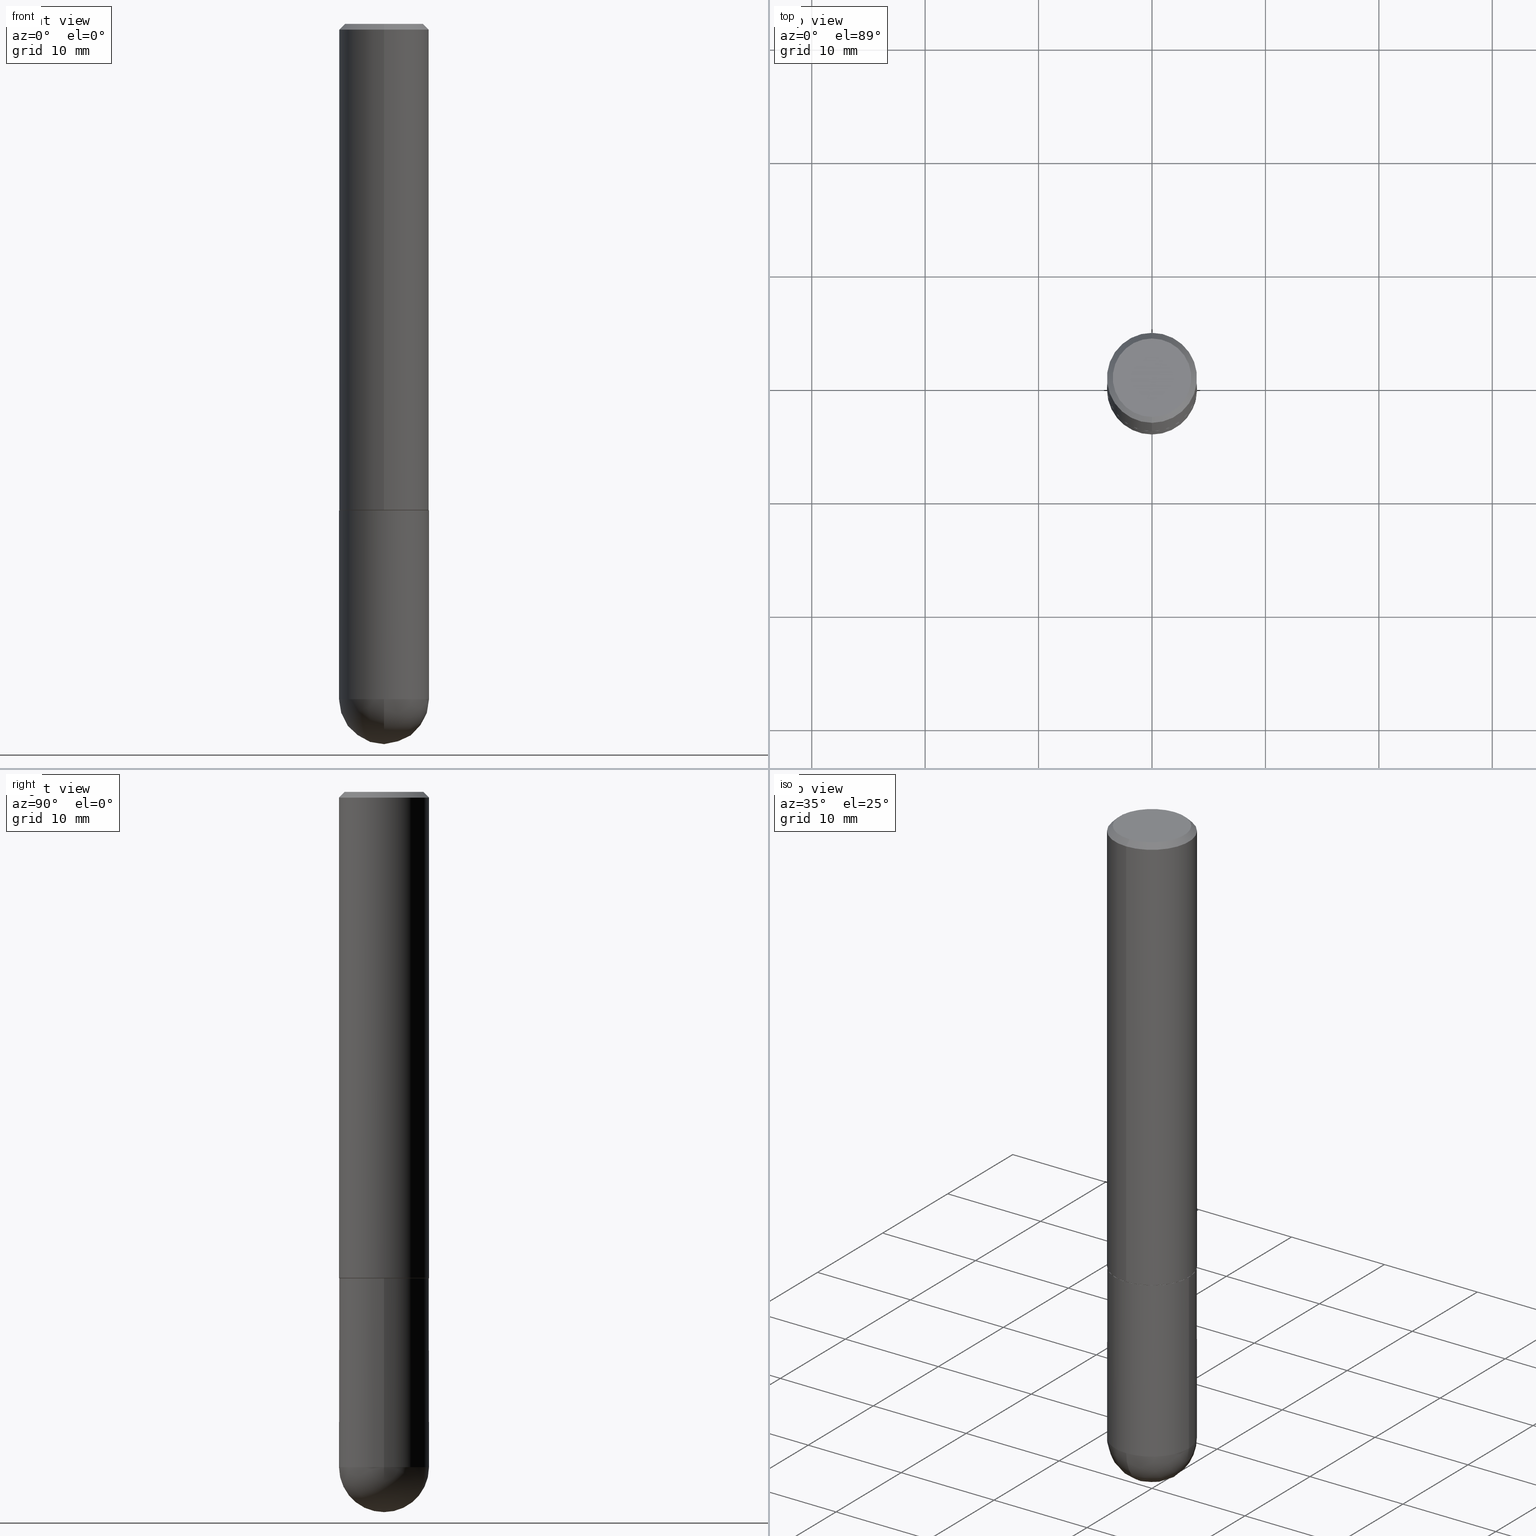
[diagram: canonical four-view strip — front | top / right | iso, engineering-drawing reading convention]
A machine part, canonical four-view strip (front | top / right | iso — engineering-drawing reading convention). The complete STEP part file that produces these views, byte-faithful:
ISO-10303-21;
HEADER;
FILE_DESCRIPTION (( 'STEP AP203' ),
    '1' );
FILE_NAME ('30050.STEP',
    '2024-02-21T16:34:51',
    ( '' ),
    ( '' ),
    'SwSTEP 2.0',
    'SolidWorks 2023',
    '' );
FILE_SCHEMA (( 'CONFIG_CONTROL_DESIGN' ));
ENDSEC;

DATA;
#1 = ORIENTED_EDGE ( 'NONE', *, *, #176, .F. ) ;
#2 = CLOSED_SHELL ( 'NONE', ( #108, #216, #400, #407, #177, #165, #371, #104 ) ) ;
#3 = ORIENTED_EDGE ( 'NONE', *, *, #37, .T. ) ;
#4 = PRODUCT_DEFINITION ( 'UNKNOWN', '', #352, #125 ) ;
#5 = VERTEX_POINT ( 'NONE', #86 ) ;
#6 = VERTEX_POINT ( 'NONE', #272 ) ;
#7 = CLOSED_SHELL ( 'NONE', ( #152, #32, #346, #262, #134 ) ) ;
#8 = CC_DESIGN_SECURITY_CLASSIFICATION ( #347, ( #352 ) ) ;
#9 = AXIS2_PLACEMENT_3D ( 'NONE', #308, #88, #243 ) ;
#10 = DIRECTION ( 'NONE',  ( -2.445468806185136597E-29, 3.491481338843145583E-15, 1.000000000000000000 ) ) ;
#11 = VERTEX_POINT ( 'NONE', #238 ) ;
#12 = DIRECTION ( 'NONE',  ( 6.982962677686266711E-15, 1.000000000000000000, -3.496765431890256131E-15 ) ) ;
#13 = SPHERICAL_SURFACE ( 'NONE', #94, 0.1562500000000002498 ) ;
#14 = APPROVAL_PERSON_ORGANIZATION ( #278, #45, #122 ) ;
#15 = CIRCLE ( 'NONE', #250, 0.1562500000000000000 ) ;
#16 = CARTESIAN_POINT ( 'NONE',  ( -0.1562500000000000000, -5.928166919315270321E-15, -2.343750000000000000 ) ) ;
#17 = COORDINATED_UNIVERSAL_TIME_OFFSET ( 5, 0, .BEHIND. ) ;
#18 = DIRECTION ( 'NONE',  ( -2.446097073552019449E-29, 3.490581624215010938E-15, 1.000000000000000000 ) ) ;
#19 = CALENDAR_DATE ( 2024, 21, 2 ) ;
#20 = DIRECTION ( 'NONE',  ( -2.446097073552019449E-29, 3.490581624215010938E-15, 1.000000000000000000 ) ) ;
#21 = EDGE_CURVE ( 'NONE', #350, #105, #392, .T. ) ;
#22 = CARTESIAN_POINT ( 'NONE',  ( 5.400447736582527652E-29, -8.657341756053672891E-15, -2.343750000000000000 ) ) ;
#23 = APPROVAL_DATE_TIME ( #311, #123 ) ;
#24 = APPLICATION_PROTOCOL_DEFINITION ( 'international standard', 'config_control_design', 1994, #254 ) ;
#25 = AXIS2_PLACEMENT_3D ( 'NONE', #22, #412, #71 ) ;
#26 = DIRECTION ( 'NONE',  ( -4.937700262164884886E-15, -0.7071067811865933139, 0.7071067811865017205 ) ) ;
#27 = PERSON_AND_ORGANIZATION ( #355, #320 ) ;
#28 = DIRECTION ( 'NONE',  ( -1.000000000000000000, 6.982962677686265922E-15, -4.883557194083112340E-29 ) ) ;
#29 = PERSON_AND_ORGANIZATION ( #355, #320 ) ;
#30 = CARTESIAN_POINT ( 'NONE',  ( 1.091087918388479765E-15, 0.1562499999999999722, -0.02000000000000057981 ) ) ;
#31 = ORIENTED_EDGE ( 'NONE', *, *, #283, .F. ) ;
#32 = ADVANCED_FACE ( 'NONE', ( #143 ), #13, .T. ) ;
#33 = APPLICATION_CONTEXT ( 'configuration controlled 3d designs of mechanical parts and assemblies' ) ;
#34 = CIRCLE ( 'NONE', #292, 0.1552499999999999991 ) ;
#35 = DIRECTION ( 'NONE',  ( -2.445468806185136597E-29, 3.491481338843145583E-15, 1.000000000000000000 ) ) ;
#36 =( GEOMETRIC_REPRESENTATION_CONTEXT ( 3 ) GLOBAL_UNCERTAINTY_ASSIGNED_CONTEXT ( ( #186 ) ) GLOBAL_UNIT_ASSIGNED_CONTEXT ( ( #270, #236, #363 ) ) REPRESENTATION_CONTEXT ( 'NONE', 'WORKASPACE' ) );
#37 = EDGE_CURVE ( 'NONE', #5, #105, #333, .T. ) ;
#38 = EDGE_CURVE ( 'NONE', #228, #160, #39, .T. ) ;
#39 = CIRCLE ( 'NONE', #56, 0.1562500000000002498 ) ;
#40 = ORIENTED_EDGE ( 'NONE', *, *, #225, .T. ) ;
#41 = ORIENTED_EDGE ( 'NONE', *, *, #195, .F. ) ;
#42 = EDGE_CURVE ( 'NONE', #157, #159, #295, .T. ) ;
#43 = ORIENTED_EDGE ( 'NONE', *, *, #21, .T. ) ;
#44 = DIRECTION ( 'NONE',  ( -1.000000000000000000, 6.982962677686265922E-15, -4.883557194083112340E-29 ) ) ;
#45 = APPROVAL ( #91, 'UNSPECIFIED' ) ;
#46 = AXIS2_PLACEMENT_3D ( 'NONE', #391, #330, #171 ) ;
#47 = ORIENTED_EDGE ( 'NONE', *, *, #403, .T. ) ;
#48 = DIRECTION ( 'NONE',  ( -2.445468806185136877E-29, 3.491481338843145188E-15, 1.000000000000000000 ) ) ;
#49 = VERTEX_POINT ( 'NONE', #16 ) ;
#50 = CARTESIAN_POINT ( 'NONE',  ( -1.084104955710751547E-15, -0.1552500000000059110, -1.687999999999999501 ) ) ;
#51 = CYLINDRICAL_SURFACE ( 'NONE', #132, 0.1562500000000000000 ) ;
#52 = EDGE_CURVE ( 'NONE', #5, #159, #142, .T. ) ;
#53 = EDGE_LOOP ( 'NONE', ( #3, #223, #85, #349 ) ) ;
#54 = DIRECTION ( 'NONE',  ( -2.445468806185136597E-29, 3.491481338843145583E-15, 1.000000000000000000 ) ) ;
#55 = DATE_TIME_ROLE ( 'creation_date' ) ;
#56 = AXIS2_PLACEMENT_3D ( 'NONE', #166, #82, #327 ) ;
#57 = DIRECTION ( 'NONE',  ( 1.000000000000000000, -6.982962677686262766E-15, 0.000000000000000000 ) ) ;
#58 = AXIS2_PLACEMENT_3D ( 'NONE', #342, #28, #150 ) ;
#59 = CYLINDRICAL_SURFACE ( 'NONE', #219, 0.1562500000000000000 ) ;
#60 = PLANE ( 'NONE',  #261 ) ;
#61 = CARTESIAN_POINT ( 'NONE',  ( 4.892194147104047096E-31, -6.981163248430033315E-17, -0.02000000000000003511 ) ) ;
#62 = DATE_AND_TIME ( #337, #302 ) ;
#63 = ORIENTED_EDGE ( 'NONE', *, *, #187, .F. ) ;
#64 = DIRECTION ( 'NONE',  ( -1.000000000000000000, 6.982962677686265922E-15, -4.876176775795935793E-29 ) ) ;
#65 = PERSON_AND_ORGANIZATION_ROLE ( 'creator' ) ;
#66 = CARTESIAN_POINT ( 'NONE',  ( 0.000000000000000000, 0.000000000000000000, 0.000000000000000000 ) ) ;
#67 = VECTOR ( 'NONE', #111, 39.37007874015748143 ) ;
#68 = FACE_OUTER_BOUND ( 'NONE', #331, .T. ) ;
#69 = ORIENTED_EDGE ( 'NONE', *, *, #362, .T. ) ;
#70 = DIRECTION ( 'NONE',  ( -6.982962677686265922E-15, -1.000000000000000000, 3.519288880726909138E-15 ) ) ;
#71 = DIRECTION ( 'NONE',  ( -7.105427357601000281E-15, -1.000000000000000000, 0.000000000000000000 ) ) ;
#72 = AXIS2_PLACEMENT_3D ( 'NONE', #360, #209, #135 ) ;
#73 = CC_DESIGN_APPROVAL ( #340, ( #4 ) ) ;
#74 = EDGE_LOOP ( 'NONE', ( #79, #80, #69, #353 ) ) ;
#75 = CIRCLE ( 'NONE', #301, 0.1552499999999999991 ) ;
#76 = AXIS2_PLACEMENT_3D ( 'NONE', #97, #402, #92 ) ;
#77 = ORIENTED_EDGE ( 'NONE', *, *, #225, .F. ) ;
#78 = CARTESIAN_POINT ( 'NONE',  ( 1.091087918388535577E-15, 0.1562499999999916733, -2.343750000000000444 ) ) ;
#79 = ORIENTED_EDGE ( 'NONE', *, *, #140, .F. ) ;
#80 = ORIENTED_EDGE ( 'NONE', *, *, #42, .T. ) ;
#81 = DIRECTION ( 'NONE',  ( -6.982962677686265922E-15, -1.000000000000000000, 3.496765431890251792E-15 ) ) ;
#82 = DIRECTION ( 'NONE',  ( 1.000000000000000000, -6.982962677686265922E-15, 4.883557194083112340E-29 ) ) ;
#83 = DATE_AND_TIME ( #307, #163 ) ;
#84 = CARTESIAN_POINT ( 'NONE',  ( 1.110223024625178431E-15, 0.1562499999999943379, -1.687000000000000499 ) ) ;
#85 = ORIENTED_EDGE ( 'NONE', *, *, #362, .F. ) ;
#86 = CARTESIAN_POINT ( 'NONE',  ( -1.091087918388439336E-15, -0.1562500000000060785, -1.686999999999999611 ) ) ;
#87 = CALENDAR_DATE ( 2024, 21, 2 ) ;
#88 = DIRECTION ( 'NONE',  ( -2.446097073552019730E-29, 3.490581624215010938E-15, 1.000000000000000000 ) ) ;
#89 = DIMENSIONAL_EXPONENTS ( 1.000000000000000000, 0.000000000000000000, 0.000000000000000000, 0.000000000000000000, 0.000000000000000000, 0.000000000000000000, 0.000000000000000000 ) ;
#90 = DIRECTION ( 'NONE',  ( 2.438088387897960049E-29, -3.491481338843145188E-15, -1.000000000000000000 ) ) ;
#91 = APPROVAL_STATUS ( 'not_yet_approved' ) ;
#92 = DIRECTION ( 'NONE',  ( 1.000000000000000000, -6.982962677686269077E-15, 0.000000000000000000 ) ) ;
#93 = COORDINATED_UNIVERSAL_TIME_OFFSET ( 5, 0, .BEHIND. ) ;
#94 = AXIS2_PLACEMENT_3D ( 'NONE', #356, #44, #232 ) ;
#95 = DIRECTION ( 'NONE',  ( -2.446097073552019730E-29, 3.490581624215010938E-15, 1.000000000000000000 ) ) ;
#96 = CYLINDRICAL_SURFACE ( 'NONE', #382, 0.1562500000000001388 ) ;
#97 = CARTESIAN_POINT ( 'NONE',  ( 4.127951344840510809E-29, -5.893620499967230340E-15, -1.688000000000000167 ) ) ;
#98 = EDGE_CURVE ( 'NONE', #49, #196, #361, .T. ) ;
#99 = AXIS2_PLACEMENT_3D ( 'NONE', #263, #201, #205 ) ;
#100 = EDGE_LOOP ( 'NONE', ( #208, #288, #194, #203, #237 ) ) ;
#101 = ORIENTED_EDGE ( 'NONE', *, *, #21, .F. ) ;
#102 = ORIENTED_EDGE ( 'NONE', *, *, #116, .T. ) ;
#103 = CARTESIAN_POINT ( 'NONE',  ( 5.731567514496413899E-29, -8.183159387913622595E-15, -2.343750000000000000 ) ) ;
#104 = ADVANCED_FACE ( 'NONE', ( #328 ), #299, .F. ) ;
#105 = VERTEX_POINT ( 'NONE', #84 ) ;
#106 = AXIS2_PLACEMENT_3D ( 'NONE', #395, #231, #12 ) ;
#107 = CARTESIAN_POINT ( 'NONE',  ( -1.003347832174086278E-15, -0.1362500000000000377, 4.925432101416136733E-16 ) ) ;
#108 = ADVANCED_FACE ( 'NONE', ( #393 ), #206, .T. ) ;
#109 = DIRECTION ( 'NONE',  ( -2.446097073552019730E-29, 3.490581624215010938E-15, 1.000000000000000000 ) ) ;
#110 = EDGE_LOOP ( 'NONE', ( #156, #260 ) ) ;
#111 = DIRECTION ( 'NONE',  ( -4.851104656540958753E-15, -0.7071067811865492381, -0.7071067811865457964 ) ) ;
#112 = APPROVAL_ROLE ( '' ) ;
#113 = ORIENTED_EDGE ( 'NONE', *, *, #98, .F. ) ;
#114 = DIRECTION ( 'NONE',  ( 6.982962677686265922E-15, 1.000000000000000000, -3.490581624215010938E-15 ) ) ;
#115 = PERSON_AND_ORGANIZATION_ROLE ( 'design_owner' ) ;
#116 = EDGE_CURVE ( 'NONE', #350, #367, #34, .T. ) ;
#117 = ORIENTED_EDGE ( 'NONE', *, *, #358, .F. ) ;
#118 = APPROVAL_PERSON_ORGANIZATION ( #394, #340, #145 ) ;
#119 = CC_DESIGN_DATE_AND_TIME_ASSIGNMENT ( #149, #405, ( #347 ) ) ;
#120 = CARTESIAN_POINT ( 'NONE',  ( 5.731567514496413899E-29, -8.183159387913622595E-15, -2.343750000000000000 ) ) ;
#121 = APPROVAL_DATE_TIME ( #62, #340 ) ;
#122 = APPROVAL_ROLE ( '' ) ;
#123 = APPROVAL ( #242, 'UNSPECIFIED' ) ;
#124 = LINE ( 'NONE', #246, #133 ) ;
#125 = DESIGN_CONTEXT ( 'detailed design', #33, 'design' ) ;
#126 = DIRECTION ( 'NONE',  ( -2.446097073552019730E-29, 3.490581624215010938E-15, 1.000000000000000000 ) ) ;
#127 = DIRECTION ( 'NONE',  ( -2.445468806185136877E-29, 3.491481338843145188E-15, 1.000000000000000000 ) ) ;
#128 = ORIENTED_EDGE ( 'NONE', *, *, #37, .F. ) ;
#129 = AXIS2_PLACEMENT_3D ( 'NONE', #218, #316, #369 ) ;
#130 = EDGE_LOOP ( 'NONE', ( #184, #1, #385, #240 ) ) ;
#131 = EDGE_LOOP ( 'NONE', ( #390, #233 ) ) ;
#132 = AXIS2_PLACEMENT_3D ( 'NONE', #138, #54, #296 ) ;
#133 = VECTOR ( 'NONE', #377, 39.37007874015748143 ) ;
#134 = ADVANCED_FACE ( 'NONE', ( #234 ), #51, .T. ) ;
#135 = DIRECTION ( 'NONE',  ( -6.982962677686265922E-15, -1.000000000000000000, 3.496765431890251792E-15 ) ) ;
#136 = CARTESIAN_POINT ( 'NONE',  ( -4.146492609711773360E-46, 5.917046819154153531E-32, 1.695146384231832547E-17 ) ) ;
#137 = CARTESIAN_POINT ( 'NONE',  ( 5.731567514496413899E-29, -8.183159387913622595E-15, -2.343750000000000000 ) ) ;
#138 = CARTESIAN_POINT ( 'NONE',  ( 0.000000000000000000, 0.000000000000000000, 0.000000000000000000 ) ) ;
#139 = AXIS2_PLACEMENT_3D ( 'NONE', #406, #35, #379 ) ;
#140 = EDGE_CURVE ( 'NONE', #157, #326, #365, .T. ) ;
#141 = APPROVAL_PERSON_ORGANIZATION ( #368, #123, #112 ) ;
#142 = LINE ( 'NONE', #168, #286 ) ;
#143 = FACE_OUTER_BOUND ( 'NONE', #257, .T. ) ;
#144 = DIRECTION ( 'NONE',  ( -2.446097073552019730E-29, 3.490581624215010938E-15, 1.000000000000000000 ) ) ;
#145 = APPROVAL_ROLE ( '' ) ;
#146 = CIRCLE ( 'NONE', #341, 0.1362500000000000377 ) ;
#147 = FACE_OUTER_BOUND ( 'NONE', #74, .T. ) ;
#148 = CARTESIAN_POINT ( 'NONE',  ( 0.1562500000000000000, -1.091087918388479174E-15, 7.619026212181150377E-30 ) ) ;
#149 = DATE_AND_TIME ( #19, #158 ) ;
#150 = DIRECTION ( 'NONE',  ( 6.982962677686265922E-15, 1.000000000000000000, -3.496765431890251398E-15 ) ) ;
#151 = DIRECTION ( 'NONE',  ( -6.982962677686265922E-15, -1.000000000000000000, 3.490581624215010938E-15 ) ) ;
#152 = ADVANCED_FACE ( 'NONE', ( #389 ), #59, .T. ) ;
#153 = AXIS2_PLACEMENT_3D ( 'NONE', #303, #305, #114 ) ;
#154 = AXIS2_PLACEMENT_3D ( 'NONE', #66, #180, #312 ) ;
#155 = DIRECTION ( 'NONE',  ( -6.982962677686265922E-15, -1.000000000000000000, 3.490581624215010544E-15 ) ) ;
#156 = ORIENTED_EDGE ( 'NONE', *, *, #255, .T. ) ;
#157 = VERTEX_POINT ( 'NONE', #107 ) ;
#158 = LOCAL_TIME ( 11, 34, 51.00000000000000000, #17 ) ;
#159 = VERTEX_POINT ( 'NONE', #227 ) ;
#160 = VERTEX_POINT ( 'NONE', #78 ) ;
#161 = VECTOR ( 'NONE', #48, 39.37007874015748143 ) ;
#162 = ORIENTED_EDGE ( 'NONE', *, *, #358, .T. ) ;
#163 = LOCAL_TIME ( 11, 34, 51.00000000000000000, #174 ) ;
#164 = CARTESIAN_POINT ( 'NONE',  ( 4.129011860155809366E-29, -5.892101781674938770E-15, -1.688000000000000167 ) ) ;
#165 = ADVANCED_FACE ( 'NONE', ( #198 ), #273, .T. ) ;
#166 = CARTESIAN_POINT ( 'NONE',  ( 5.400447736582527652E-29, -8.657341756053672891E-15, -2.343750000000000000 ) ) ;
#167 = FACE_OUTER_BOUND ( 'NONE', #315, .T. ) ;
#168 = CARTESIAN_POINT ( 'NONE',  ( -1.091087918388479962E-15, -0.1562500000000001388, 5.454033787835959398E-16 ) ) ;
#169 = COORDINATED_UNIVERSAL_TIME_OFFSET ( 5, 0, .BEHIND. ) ;
#170 = AXIS2_PLACEMENT_3D ( 'NONE', #381, #90, #64 ) ;
#171 = DIRECTION ( 'NONE',  ( 6.982962677686266711E-15, 1.000000000000000000, -3.496765431890256131E-15 ) ) ;
#172 = CARTESIAN_POINT ( 'NONE',  ( 0.000000000000000000, 0.000000000000000000, 0.000000000000000000 ) ) ;
#173 = FACE_OUTER_BOUND ( 'NONE', #110, .T. ) ;
#174 = COORDINATED_UNIVERSAL_TIME_OFFSET ( 5, 0, .BEHIND. ) ;
#175 =( LENGTH_UNIT ( ) NAMED_UNIT ( * ) SI_UNIT ( $, .METRE. ) );
#176 = EDGE_CURVE ( 'NONE', #326, #157, #146, .T. ) ;
#177 = ADVANCED_FACE ( 'NONE', ( #68 ), #96, .T. ) ;
#178 = CARTESIAN_POINT ( 'NONE',  ( 1.091087918388479765E-15, 0.1562499999999999722, -0.02000000000000057981 ) ) ;
#179 = APPROVAL_STATUS ( 'not_yet_approved' ) ;
#180 = DIRECTION ( 'NONE',  ( 0.000000000000000000, 0.000000000000000000, 1.000000000000000000 ) ) ;
#181 = CARTESIAN_POINT ( 'NONE',  ( -1.084104955710751547E-15, -0.1552500000000059110, -1.687999999999999501 ) ) ;
#182 = CALENDAR_DATE ( 2024, 21, 2 ) ;
#183 = CARTESIAN_POINT ( 'NONE',  ( 0.000000000000000000, 0.000000000000000000, 0.000000000000000000 ) ) ;
#184 = ORIENTED_EDGE ( 'NONE', *, *, #42, .F. ) ;
#185 = DIRECTION ( 'NONE',  ( -2.446097073552019730E-29, 3.490581624215010938E-15, 1.000000000000000000 ) ) ;
#186 = UNCERTAINTY_MEASURE_WITH_UNIT (LENGTH_MEASURE( 1.000000000000000082E-05 ), #270, 'distance_accuracy_value', 'NONE');
#187 = EDGE_CURVE ( 'NONE', #6, #160, #197, .T. ) ;
#188 = CIRCLE ( 'NONE', #281, 0.1562500000000000000 ) ;
#189 = CIRCLE ( 'NONE', #401, 0.1562500000000000278 ) ;
#190 = ORIENTED_EDGE ( 'NONE', *, *, #38, .F. ) ;
#191 = CC_DESIGN_DATE_AND_TIME_ASSIGNMENT ( #83, #55, ( #4 ) ) ;
#192 = EDGE_LOOP ( 'NONE', ( #40, #43, #128, #383 ) ) ;
#193 = CONICAL_SURFACE ( 'NONE', #106, 0.1562500000000000278, 0.7853981633974472798 ) ;
#194 = ORIENTED_EDGE ( 'NONE', *, *, #255, .F. ) ;
#195 = EDGE_CURVE ( 'NONE', #228, #11, #376, .T. ) ;
#196 = VERTEX_POINT ( 'NONE', #409 ) ;
#197 = CIRCLE ( 'NONE', #139, 0.1562500000000000000 ) ;
#198 = FACE_OUTER_BOUND ( 'NONE', #323, .T. ) ;
#199 = DIRECTION ( 'NONE',  ( 5.024295867788404755E-15, 0.7071067811865981989, 0.7071067811864968355 ) ) ;
#200 = CARTESIAN_POINT ( 'NONE',  ( 0.1562500000000000000, -6.984708418355709513E-15, -1.688000000000000167 ) ) ;
#201 = DIRECTION ( 'NONE',  ( -2.446097073552019730E-29, 3.490581624215010938E-15, 1.000000000000000000 ) ) ;
#202 = SHAPE_DEFINITION_REPRESENTATION ( #289, #359 ) ;
#203 = ORIENTED_EDGE ( 'NONE', *, *, #211, .F. ) ;
#204 = DIRECTION ( 'NONE',  ( -2.445468806185136597E-29, 3.491481338843145583E-15, 1.000000000000000000 ) ) ;
#205 = DIRECTION ( 'NONE',  ( -6.982962677686265922E-15, -1.000000000000000000, 3.519288880726909138E-15 ) ) ;
#206 = CONICAL_SURFACE ( 'NONE', #99, 0.1552499999999999991, 0.7853981633975165577 ) ;
#207 = CIRCLE ( 'NONE', #294, 0.1562500000000002220 ) ;
#208 = ORIENTED_EDGE ( 'NONE', *, *, #290, .T. ) ;
#209 = DIRECTION ( 'NONE',  ( -2.446097073552019730E-29, 3.490581624215010938E-15, 1.000000000000000000 ) ) ;
#210 = PERSON_AND_ORGANIZATION ( #355, #320 ) ;
#211 = EDGE_CURVE ( 'NONE', #6, #364, #314, .T. ) ;
#212 = LENGTH_MEASURE_WITH_UNIT ( LENGTH_MEASURE( 0.02539999999999999897 ), #175 );
#213 = DIRECTION ( 'NONE',  ( -2.445468806185136597E-29, 3.491481338843145583E-15, 1.000000000000000000 ) ) ;
#214 = MECHANICAL_CONTEXT ( 'NONE', #254, 'mechanical' ) ;
#215 = SPHERICAL_SURFACE ( 'NONE', #58, 0.1562500000000002498 ) ;
#216 = ADVANCED_FACE ( 'NONE', ( #344 ), #339, .T. ) ;
#217 = CARTESIAN_POINT ( 'NONE',  ( 5.789233224183170584E-29, -9.193318162129576161E-15, -2.500000000000000000 ) ) ;
#218 = CARTESIAN_POINT ( 'NONE',  ( 4.127951344840510809E-29, -5.893620499967230340E-15, -1.688000000000000167 ) ) ;
#219 = AXIS2_PLACEMENT_3D ( 'NONE', #172, #10, #267 ) ;
#220 = CONICAL_SURFACE ( 'NONE', #46, 0.1562500000000000278, 0.7853981633974472798 ) ;
#221 = ORIENTED_EDGE ( 'NONE', *, *, #195, .T. ) ;
#222 = EDGE_CURVE ( 'NONE', #326, #287, #241, .T. ) ;
#223 = ORIENTED_EDGE ( 'NONE', *, *, #354, .T. ) ;
#224 = ORIENTED_EDGE ( 'NONE', *, *, #403, .F. ) ;
#225 = EDGE_CURVE ( 'NONE', #367, #350, #75, .T. ) ;
#226 = CC_DESIGN_APPROVAL ( #123, ( #352 ) ) ;
#227 = CARTESIAN_POINT ( 'NONE',  ( -1.071952812151801412E-15, -0.1562500000000001110, -0.01999999999999948694 ) ) ;
#228 = VERTEX_POINT ( 'NONE', #217 ) ;
#229 = VECTOR ( 'NONE', #199, 39.37007874015748143 ) ;
#230 = DIRECTION ( 'NONE',  ( -6.982962677686265922E-15, -1.000000000000000000, 3.519288880726909138E-15 ) ) ;
#231 = DIRECTION ( 'NONE',  ( 2.446097073552019730E-29, -3.490581624215010938E-15, -1.000000000000000000 ) ) ;
#232 = DIRECTION ( 'NONE',  ( 6.982962677686265922E-15, 1.000000000000000000, -3.496765431890251398E-15 ) ) ;
#233 = ORIENTED_EDGE ( 'NONE', *, *, #140, .T. ) ;
#234 = FACE_OUTER_BOUND ( 'NONE', #396, .T. ) ;
#235 = MANIFOLD_SOLID_BREP ( 'Body-Move/Copy2[1]', #7 ) ;
#236 =( NAMED_UNIT ( * ) PLANE_ANGLE_UNIT ( ) SI_UNIT ( $, .RADIAN. ) );
#237 = ORIENTED_EDGE ( 'NONE', *, *, #187, .T. ) ;
#238 = CARTESIAN_POINT ( 'NONE',  ( -1.110223024625101517E-15, -0.1562500000000085487, -2.343749999999999556 ) ) ;
#239 = APPLICATION_PROTOCOL_DEFINITION ( 'international standard', 'config_control_design', 1994, #33 ) ;
#240 = ORIENTED_EDGE ( 'NONE', *, *, #283, .T. ) ;
#241 = LINE ( 'NONE', #30, #248 ) ;
#242 = APPROVAL_STATUS ( 'not_yet_approved' ) ;
#243 = DIRECTION ( 'NONE',  ( -6.982962677686266711E-15, -1.000000000000000000, 3.496765431890256131E-15 ) ) ;
#244 = PLANE ( 'NONE',  #170 ) ;
#245 = PERSON_AND_ORGANIZATION ( #355, #320 ) ;
#246 = CARTESIAN_POINT ( 'NONE',  ( 1.110223024625157329E-15, 0.1562500000000001388, -5.454033787835959398E-16 ) ) ;
#247 = PERSON_AND_ORGANIZATION_ROLE ( 'classification_officer' ) ;
#248 = VECTOR ( 'NONE', #345, 39.37007874015748143 ) ;
#249 = CC_DESIGN_APPROVAL ( #45, ( #347 ) ) ;
#250 = AXIS2_PLACEMENT_3D ( 'NONE', #137, #204, #57 ) ;
#251 = DIRECTION ( 'NONE',  ( -6.982962677686265922E-15, -1.000000000000000000, 3.519288880726909138E-15 ) ) ;
#252 = DIRECTION ( 'NONE',  ( -2.446097073552019730E-29, 3.490581624215010938E-15, 1.000000000000000000 ) ) ;
#253 = ORIENTED_EDGE ( 'NONE', *, *, #52, .T. ) ;
#254 = APPLICATION_CONTEXT ( 'configuration controlled 3d designs of mechanical parts and assemblies' ) ;
#255 = EDGE_CURVE ( 'NONE', #364, #196, #309, .T. ) ;
#256 = VECTOR ( 'NONE', #127, 39.37007874015748143 ) ;
#257 = EDGE_LOOP ( 'NONE', ( #190, #221, #117, #259 ) ) ;
#258 = CC_DESIGN_PERSON_AND_ORGANIZATION_ASSIGNMENT ( #27, #247, ( #347 ) ) ;
#259 = ORIENTED_EDGE ( 'NONE', *, *, #290, .F. ) ;
#260 = ORIENTED_EDGE ( 'NONE', *, *, #271, .T. ) ;
#261 = AXIS2_PLACEMENT_3D ( 'NONE', #338, #20, #298 ) ;
#262 = ADVANCED_FACE ( 'NONE', ( #173 ), #244, .F. ) ;
#263 = CARTESIAN_POINT ( 'NONE',  ( 4.129011860155809366E-29, -5.892101781674938770E-15, -1.688000000000000167 ) ) ;
#264 = CARTESIAN_POINT ( 'NONE',  ( -0.1562500000000000000, 1.110223024625156540E-15, -7.685836078523291160E-30 ) ) ;
#265 = CC_DESIGN_PERSON_AND_ORGANIZATION_ASSIGNMENT ( #398, #65, ( #4 ) ) ;
#266 = CARTESIAN_POINT ( 'NONE',  ( 4.126565763082257571E-29, -5.888611200050725168E-15, -1.687000000000000055 ) ) ;
#267 = DIRECTION ( 'NONE',  ( 1.000000000000000000, -6.982962677686266711E-15, 4.876176775795936353E-29 ) ) ;
#268 = DIRECTION ( 'NONE',  ( -6.982962677686265922E-15, -1.000000000000000000, 3.490581624215010544E-15 ) ) ;
#269 = DATE_AND_TIME ( #87, #293 ) ;
#270 =( CONVERSION_BASED_UNIT ( 'INCH', #212 ) LENGTH_UNIT ( ) NAMED_UNIT ( #89 ) );
#271 = EDGE_CURVE ( 'NONE', #196, #364, #408, .T. ) ;
#272 = CARTESIAN_POINT ( 'NONE',  ( 0.1562500000000000000, -8.129477862328905246E-15, -2.343750000000000000 ) ) ;
#273 = CONICAL_SURFACE ( 'NONE', #324, 0.1552499999999999991, 0.7853981633975165577 ) ;
#274 = DIRECTION ( 'NONE',  ( -6.982962677686266711E-15, -1.000000000000000000, 3.496765431890256131E-15 ) ) ;
#275 = COORDINATED_UNIVERSAL_TIME_OFFSET ( 5, 0, .BEHIND. ) ;
#276 = PRODUCT_RELATED_PRODUCT_CATEGORY ( 'detail', '', ( #387 ) ) ;
#277 = CARTESIAN_POINT ( 'NONE',  ( 1.021258291611616861E-15, 0.1362500000000000377, -4.586402824569769484E-16 ) ) ;
#278 = PERSON_AND_ORGANIZATION ( #355, #320 ) ;
#279 = DIRECTION ( 'NONE',  ( -2.446097073552019730E-29, 3.490581624215010938E-15, 1.000000000000000000 ) ) ;
#280 = CARTESIAN_POINT ( 'NONE',  ( 4.129011860155809366E-29, -5.892101781674938770E-15, -1.688000000000000167 ) ) ;
#281 = AXIS2_PLACEMENT_3D ( 'NONE', #120, #213, #310 ) ;
#282 = DIRECTION ( 'NONE',  ( -6.982962677686265922E-15, -1.000000000000000000, 3.490581624215010938E-15 ) ) ;
#283 = EDGE_CURVE ( 'NONE', #287, #159, #189, .T. ) ;
#284 = ORIENTED_EDGE ( 'NONE', *, *, #378, .F. ) ;
#285 = ORIENTED_EDGE ( 'NONE', *, *, #354, .F. ) ;
#286 = VECTOR ( 'NONE', #18, 39.37007874015748143 ) ;
#287 = VERTEX_POINT ( 'NONE', #178 ) ;
#288 = ORIENTED_EDGE ( 'NONE', *, *, #98, .T. ) ;
#289 = PRODUCT_DEFINITION_SHAPE ( 'NONE', 'NONE',  #4 ) ;
#290 = EDGE_CURVE ( 'NONE', #160, #49, #188, .T. ) ;
#291 = ORIENTED_EDGE ( 'NONE', *, *, #38, .T. ) ;
#292 = AXIS2_PLACEMENT_3D ( 'NONE', #164, #109, #230 ) ;
#293 = LOCAL_TIME ( 11, 34, 51.00000000000000000, #93 ) ;
#294 = AXIS2_PLACEMENT_3D ( 'NONE', #266, #300, #81 ) ;
#295 = LINE ( 'NONE', #388, #67 ) ;
#296 = DIRECTION ( 'NONE',  ( 1.000000000000000000, -6.982962677686266711E-15, 4.876176775795936353E-29 ) ) ;
#297 = ORIENTED_EDGE ( 'NONE', *, *, #116, .F. ) ;
#298 = DIRECTION ( 'NONE',  ( -6.982962677686265922E-15, -1.000000000000000000, 3.490581624215010938E-15 ) ) ;
#299 = PLANE ( 'NONE',  #153 ) ;
#300 = DIRECTION ( 'NONE',  ( -2.446097073552019730E-29, 3.490581624215010938E-15, 1.000000000000000000 ) ) ;
#301 = AXIS2_PLACEMENT_3D ( 'NONE', #280, #126, #251 ) ;
#302 = LOCAL_TIME ( 11, 34, 51.00000000000000000, #275 ) ;
#303 = CARTESIAN_POINT ( 'NONE',  ( 9.514286648347539576E-16, 0.1362500000000000377, -4.671160143781362282E-16 ) ) ;
#304 = APPROVAL_DATE_TIME ( #269, #45 ) ;
#305 = DIRECTION ( 'NONE',  ( 2.446097073552019449E-29, -3.490581624215010938E-15, -1.000000000000000000 ) ) ;
#306 = CARTESIAN_POINT ( 'NONE',  ( -4.146492609711773360E-46, 5.917046819154153531E-32, 1.695146384231832547E-17 ) ) ;
#307 = CALENDAR_DATE ( 2024, 21, 2 ) ;
#308 = CARTESIAN_POINT ( 'NONE',  ( 4.892194147104047096E-31, -6.981163248430033315E-17, -0.02000000000000003511 ) ) ;
#309 = CIRCLE ( 'NONE', #129, 0.1562500000000000000 ) ;
#310 = DIRECTION ( 'NONE',  ( 1.000000000000000000, -6.982962677686262766E-15, 0.000000000000000000 ) ) ;
#311 = DATE_AND_TIME ( #182, #410 ) ;
#312 = DIRECTION ( 'NONE',  ( 1.000000000000000000, 0.000000000000000000, 0.000000000000000000 ) ) ;
#313 = LINE ( 'NONE', #181, #317 ) ;
#314 = LINE ( 'NONE', #148, #256 ) ;
#315 = EDGE_LOOP ( 'NONE', ( #77, #297 ) ) ;
#316 = DIRECTION ( 'NONE',  ( -2.445468806185136597E-29, 3.491481338843145583E-15, 1.000000000000000000 ) ) ;
#317 = VECTOR ( 'NONE', #26, 39.37007874015748143 ) ;
#318 = ORIENTED_EDGE ( 'NONE', *, *, #211, .T. ) ;
#319 = ORIENTED_EDGE ( 'NONE', *, *, #271, .F. ) ;
#320 = ORGANIZATION ( 'UNSPECIFIED', 'UNSPECIFIED', '' ) ;
#321 = ORIENTED_EDGE ( 'NONE', *, *, #378, .T. ) ;
#322 = EDGE_LOOP ( 'NONE', ( #41, #291, #63, #224 ) ) ;
#323 = EDGE_LOOP ( 'NONE', ( #101, #102, #411, #284 ) ) ;
#324 = AXIS2_PLACEMENT_3D ( 'NONE', #357, #252, #70 ) ;
#325 = EDGE_CURVE ( 'NONE', #367, #5, #313, .T. ) ;
#326 = VERTEX_POINT ( 'NONE', #277 ) ;
#327 = DIRECTION ( 'NONE',  ( 6.982962677686265922E-15, 1.000000000000000000, 0.000000000000000000 ) ) ;
#328 = FACE_OUTER_BOUND ( 'NONE', #131, .T. ) ;
#329 = CC_DESIGN_PERSON_AND_ORGANIZATION_ASSIGNMENT ( #29, #375, ( #352 ) ) ;
#330 = DIRECTION ( 'NONE',  ( 2.446097073552019730E-29, -3.490581624215010938E-15, -1.000000000000000000 ) ) ;
#331 = EDGE_LOOP ( 'NONE', ( #285, #321, #253, #31 ) ) ;
#332 = DIRECTION ( 'NONE',  ( -2.445468806185136597E-29, 3.491481338843145583E-15, 1.000000000000000000 ) ) ;
#333 = CIRCLE ( 'NONE', #72, 0.1562500000000002220 ) ;
#334 = DIRECTION ( 'NONE',  ( -2.446097073552019730E-29, 3.490581624215010938E-15, 1.000000000000000000 ) ) ;
#335 = DIRECTION ( 'NONE',  ( 1.000000000000000000, -6.982962677686262766E-15, 0.000000000000000000 ) ) ;
#336 = CARTESIAN_POINT ( 'NONE',  ( 0.000000000000000000, 0.000000000000000000, 0.000000000000000000 ) ) ;
#337 = CALENDAR_DATE ( 2024, 21, 2 ) ;
#338 = CARTESIAN_POINT ( 'NONE',  ( 4.129011860155809366E-29, -5.892101781674938770E-15, -1.688000000000000167 ) ) ;
#339 = CYLINDRICAL_SURFACE ( 'NONE', #351, 0.1562500000000001388 ) ;
#340 = APPROVAL ( #179, 'UNSPECIFIED' ) ;
#341 = AXIS2_PLACEMENT_3D ( 'NONE', #306, #95, #155 ) ;
#342 = CARTESIAN_POINT ( 'NONE',  ( 5.400447736582527652E-29, -8.657341756053672891E-15, -2.343750000000000000 ) ) ;
#343 = PERSON_AND_ORGANIZATION_ROLE ( 'creator' ) ;
#344 = FACE_OUTER_BOUND ( 'NONE', #53, .T. ) ;
#345 = DIRECTION ( 'NONE',  ( 4.937700262164542520E-15, 0.7071067811865443531, -0.7071067811865506814 ) ) ;
#346 = ADVANCED_FACE ( 'NONE', ( #404 ), #215, .T. ) ;
#347 = SECURITY_CLASSIFICATION ( '', '', #370 ) ;
#348 = CIRCLE ( 'NONE', #366, 0.1562500000000000000 ) ;
#349 = ORIENTED_EDGE ( 'NONE', *, *, #52, .F. ) ;
#350 = VERTEX_POINT ( 'NONE', #374 ) ;
#351 = AXIS2_PLACEMENT_3D ( 'NONE', #183, #185, #151 ) ;
#352 = PRODUCT_DEFINITION_FORMATION_WITH_SPECIFIED_SOURCE ( 'ANY', '', #387, .NOT_KNOWN. ) ;
#353 = ORIENTED_EDGE ( 'NONE', *, *, #222, .F. ) ;
#354 = EDGE_CURVE ( 'NONE', #105, #287, #124, .T. ) ;
#355 = PERSON ( 'UNSPECIFIED', 'UNSPECIFIED', 'UNSPECIFIED', ('UNSPECIFIED'), ('UNSPECIFIED'), ('UNSPECIFIED') ) ;
#356 = CARTESIAN_POINT ( 'NONE',  ( 5.400447736582527652E-29, -8.657341756053672891E-15, -2.343750000000000000 ) ) ;
#357 = CARTESIAN_POINT ( 'NONE',  ( 4.129011860155809366E-29, -5.892101781674938770E-15, -1.688000000000000167 ) ) ;
#358 = EDGE_CURVE ( 'NONE', #49, #11, #348, .T. ) ;
#359 = ADVANCED_BREP_SHAPE_REPRESENTATION ( '30050', ( #235, #380, #154 ), #36 ) ;
#360 = CARTESIAN_POINT ( 'NONE',  ( 4.126565763082257571E-29, -5.888611200050725168E-15, -1.687000000000000055 ) ) ;
#361 = LINE ( 'NONE', #264, #161 ) ;
#362 = EDGE_CURVE ( 'NONE', #159, #287, #386, .T. ) ;
#363 =( NAMED_UNIT ( * ) SI_UNIT ( $, .STERADIAN. ) SOLID_ANGLE_UNIT ( ) );
#364 = VERTEX_POINT ( 'NONE', #200 ) ;
#365 = CIRCLE ( 'NONE', #399, 0.1362500000000000377 ) ;
#366 = AXIS2_PLACEMENT_3D ( 'NONE', #103, #332, #335 ) ;
#367 = VERTEX_POINT ( 'NONE', #50 ) ;
#368 = PERSON_AND_ORGANIZATION ( #355, #320 ) ;
#369 = DIRECTION ( 'NONE',  ( 1.000000000000000000, -6.982962677686269077E-15, 0.000000000000000000 ) ) ;
#370 = SECURITY_CLASSIFICATION_LEVEL ( 'unclassified' ) ;
#371 = ADVANCED_FACE ( 'NONE', ( #167 ), #60, .F. ) ;
#372 = FACE_OUTER_BOUND ( 'NONE', #130, .T. ) ;
#373 = CC_DESIGN_PERSON_AND_ORGANIZATION_ASSIGNMENT ( #210, #115, ( #387 ) ) ;
#374 = CARTESIAN_POINT ( 'NONE',  ( 1.106670310946397649E-15, 0.1552499999999940872, -1.688000000000000611 ) ) ;
#375 = PERSON_AND_ORGANIZATION_ROLE ( 'design_supplier' ) ;
#376 = CIRCLE ( 'NONE', #25, 0.1562500000000002498 ) ;
#377 = DIRECTION ( 'NONE',  ( -2.446097073552019449E-29, 3.490581624215010938E-15, 1.000000000000000000 ) ) ;
#378 = EDGE_CURVE ( 'NONE', #105, #5, #207, .T. ) ;
#379 = DIRECTION ( 'NONE',  ( 1.000000000000000000, -6.982962677686262766E-15, 0.000000000000000000 ) ) ;
#380 = MANIFOLD_SOLID_BREP ( 'Body-Move/Copy2[2]', #2 ) ;
#381 = CARTESIAN_POINT ( 'NONE',  ( 1.091087918388520392E-15, 0.1562499999999940881, -1.688000000000000611 ) ) ;
#382 = AXIS2_PLACEMENT_3D ( 'NONE', #336, #279, #282 ) ;
#383 = ORIENTED_EDGE ( 'NONE', *, *, #325, .F. ) ;
#384 = CC_DESIGN_PERSON_AND_ORGANIZATION_ASSIGNMENT ( #245, #343, ( #352 ) ) ;
#385 = ORIENTED_EDGE ( 'NONE', *, *, #222, .T. ) ;
#386 = CIRCLE ( 'NONE', #9, 0.1562500000000000278 ) ;
#387 = PRODUCT ( '30050', '30050', '', ( #214 ) ) ;
#388 = CARTESIAN_POINT ( 'NONE',  ( -1.071952812151801412E-15, -0.1562500000000001110, -0.01999999999999948694 ) ) ;
#389 = FACE_OUTER_BOUND ( 'NONE', #100, .T. ) ;
#390 = ORIENTED_EDGE ( 'NONE', *, *, #176, .T. ) ;
#391 = CARTESIAN_POINT ( 'NONE',  ( 4.892194147104047096E-31, -6.981163248430033315E-17, -0.02000000000000003511 ) ) ;
#392 = LINE ( 'NONE', #397, #229 ) ;
#393 = FACE_OUTER_BOUND ( 'NONE', #192, .T. ) ;
#394 = PERSON_AND_ORGANIZATION ( #355, #320 ) ;
#395 = CARTESIAN_POINT ( 'NONE',  ( 4.892194147104047096E-31, -6.981163248430033315E-17, -0.02000000000000003511 ) ) ;
#396 = EDGE_LOOP ( 'NONE', ( #113, #162, #47, #318, #319 ) ) ;
#397 = CARTESIAN_POINT ( 'NONE',  ( 1.103117597267596553E-15, 0.1552499999999940872, -1.688000000000000611 ) ) ;
#398 = PERSON_AND_ORGANIZATION ( #355, #320 ) ;
#399 = AXIS2_PLACEMENT_3D ( 'NONE', #136, #334, #268 ) ;
#400 = ADVANCED_FACE ( 'NONE', ( #147 ), #193, .T. ) ;
#401 = AXIS2_PLACEMENT_3D ( 'NONE', #61, #144, #274 ) ;
#402 = DIRECTION ( 'NONE',  ( -2.445468806185136597E-29, 3.491481338843145583E-15, 1.000000000000000000 ) ) ;
#403 = EDGE_CURVE ( 'NONE', #11, #6, #15, .T. ) ;
#404 = FACE_OUTER_BOUND ( 'NONE', #322, .T. ) ;
#405 = DATE_TIME_ROLE ( 'classification_date' ) ;
#406 = CARTESIAN_POINT ( 'NONE',  ( 5.731567514496413899E-29, -8.183159387913622595E-15, -2.343750000000000000 ) ) ;
#407 = ADVANCED_FACE ( 'NONE', ( #372 ), #220, .T. ) ;
#408 = CIRCLE ( 'NONE', #76, 0.1562500000000000000 ) ;
#409 = CARTESIAN_POINT ( 'NONE',  ( -0.1562500000000000000, -5.928166919315269532E-15, -1.688000000000000167 ) ) ;
#410 = LOCAL_TIME ( 11, 34, 51.00000000000000000, #169 ) ;
#411 = ORIENTED_EDGE ( 'NONE', *, *, #325, .T. ) ;
#412 = DIRECTION ( 'NONE',  ( -1.000000000000000000, 7.105427357601001070E-15, -4.926315508542082329E-29 ) ) ;
ENDSEC;
END-ISO-10303-21;
